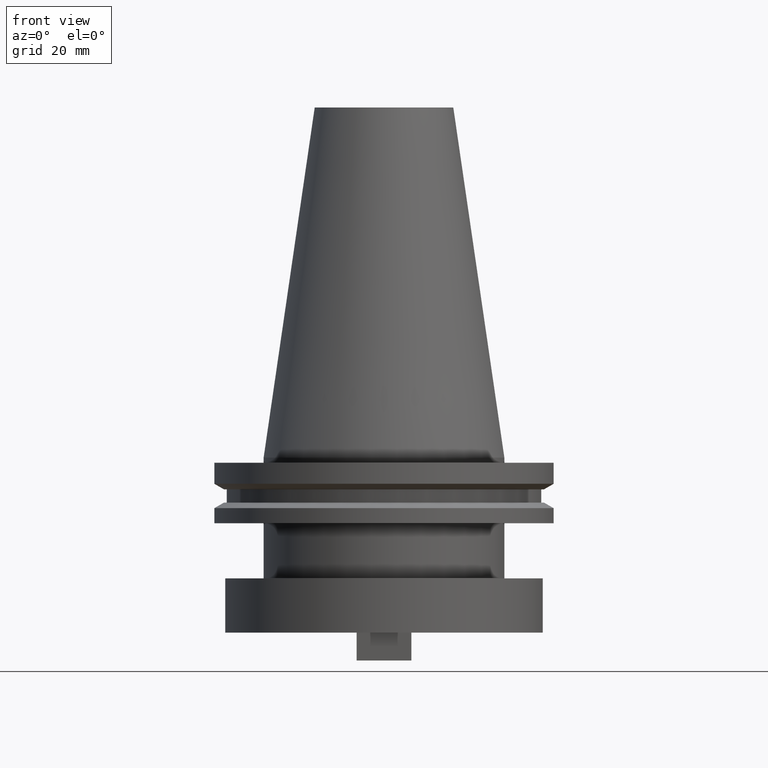
[diagram: clean part render]
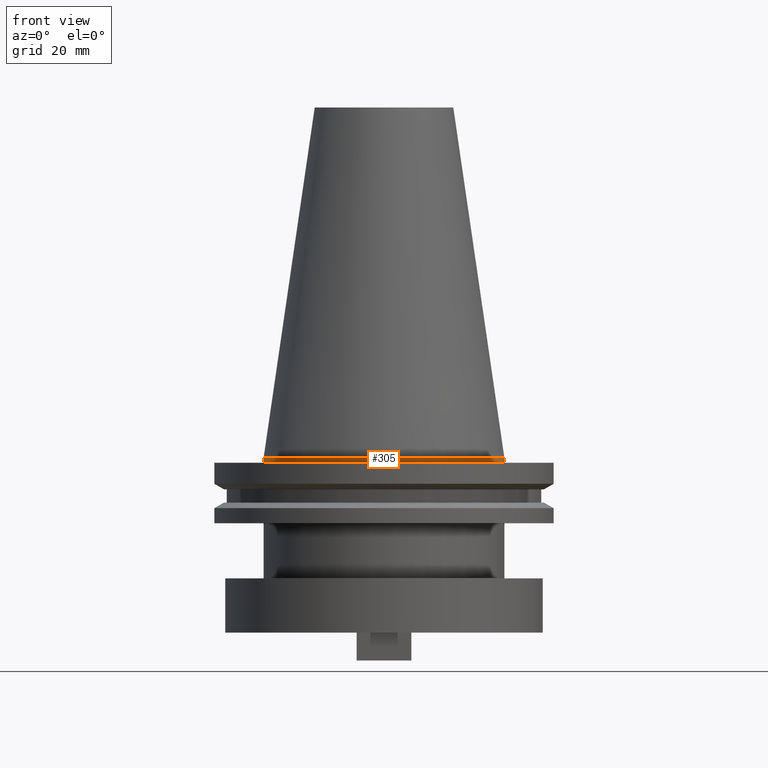
[diagram: same view with one face highlighted and labeled with its STEP entity id]
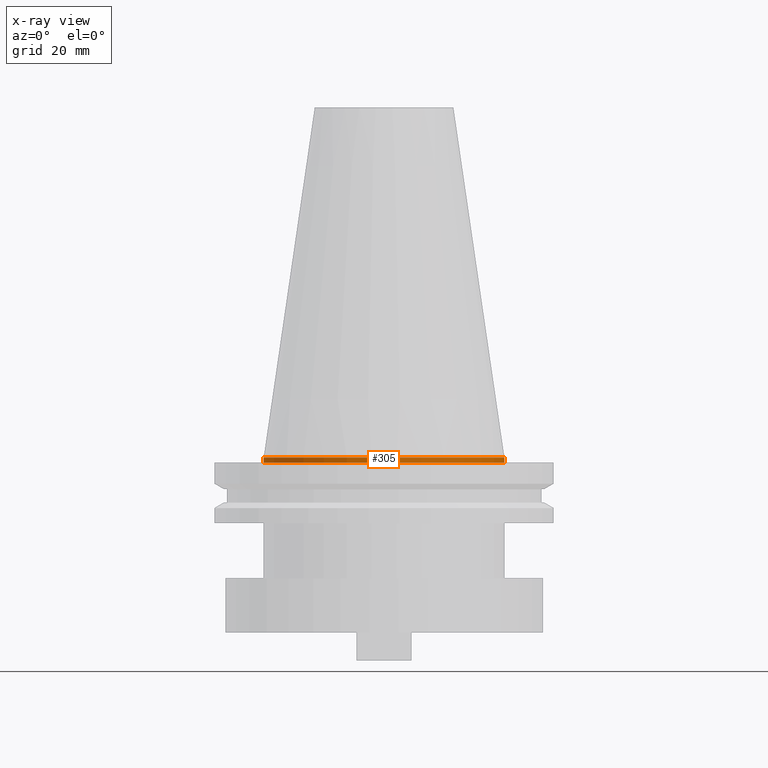
[diagram: x-ray of the same camera — body ghosted, the highlighted face saturated]
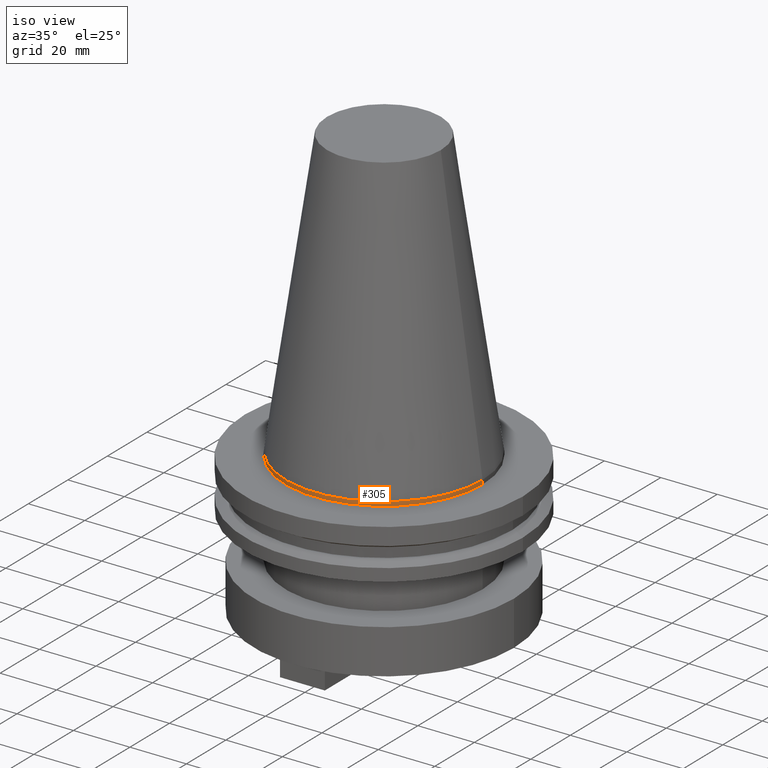
[diagram: same view with one face highlighted and labeled with its STEP entity id]
A machine part, front view. The second image highlights one B-rep face of the part: STEP entity #305.
The next image is the same camera in x-ray: the body ghosted, the highlighted face saturated — about 0% of this face is hidden behind the body in this view.
A second angle (iso view) of the same face is appended — the face is thin or edge-on in the first view.
In plain terms, the highlighted cylindrical surface (partial cylindrical patch) has radius 34.925 mm, axis along (-0, -0, 1).
Its self-contained STEP definition (entity closure, byte-faithful):
#11 = ORIENTED_EDGE ( 'NONE', *, *, #1067, .T. ) ;
#40 = LINE ( 'NONE', #710, #262 ) ;
#120 = VERTEX_POINT ( 'NONE', #859 ) ;
#140 = CARTESIAN_POINT ( 'NONE',  ( 0.000000000000000000, 0.000000000000000000, 101.5999999999999943 ) ) ;
#197 = VERTEX_POINT ( 'NONE', #971 ) ;
#262 = VECTOR ( 'NONE', #616, 1000.000000000000000 ) ;
#265 = VERTEX_POINT ( 'NONE', #537 ) ;
#296 = CYLINDRICAL_SURFACE ( 'NONE', #1019, 34.92499999999999005 ) ;
#305 = ADVANCED_FACE ( 'NONE', ( #1064 ), #296, .T. ) ;
#308 = DIRECTION ( 'NONE',  ( -0.000000000000000000, -0.000000000000000000, 1.000000000000000000 ) ) ;
#361 = EDGE_CURVE ( 'NONE', #799, #197, #704, .T. ) ;
#398 = DIRECTION ( 'NONE',  ( 1.000000000000000000, 0.000000000000000000, 0.000000000000000000 ) ) ;
#402 = VECTOR ( 'NONE', #618, 1000.000000000000000 ) ;
#411 = DIRECTION ( 'NONE',  ( -0.000000000000000000, -0.000000000000000000, 1.000000000000000000 ) ) ;
#537 = CARTESIAN_POINT ( 'NONE',  ( -34.92499999999999005, 0.000000000000000000, 0.000000000000000000 ) ) ;
#540 = ORIENTED_EDGE ( 'NONE', *, *, #780, .F. ) ;
#579 = LINE ( 'NONE', #851, #402 ) ;
#609 = ORIENTED_EDGE ( 'NONE', *, *, #361, .T. ) ;
#616 = DIRECTION ( 'NONE',  ( -0.000000000000000000, -0.000000000000000000, 1.000000000000000000 ) ) ;
#618 = DIRECTION ( 'NONE',  ( -0.000000000000000000, -0.000000000000000000, 1.000000000000000000 ) ) ;
#663 = CARTESIAN_POINT ( 'NONE',  ( 0.000000000000000000, 0.000000000000000000, -1.499999999999987566 ) ) ;
#694 = EDGE_LOOP ( 'NONE', ( #760, #609, #11, #540 ) ) ;
#704 = CIRCLE ( 'NONE', #758, 34.92499999999999005 ) ;
#710 = CARTESIAN_POINT ( 'NONE',  ( 34.92499999999999005, 0.000000000000000000, 101.5999999999999943 ) ) ;
#713 = EDGE_CURVE ( 'NONE', #799, #265, #579, .T. ) ;
#758 = AXIS2_PLACEMENT_3D ( 'NONE', #663, #411, #996 ) ;
#760 = ORIENTED_EDGE ( 'NONE', *, *, #713, .F. ) ;
#780 = EDGE_CURVE ( 'NONE', #265, #120, #979, .T. ) ;
#799 = VERTEX_POINT ( 'NONE', #1062 ) ;
#851 = CARTESIAN_POINT ( 'NONE',  ( -34.92499999999999005, 4.277078946022130098E-15, 101.5999999999999943 ) ) ;
#859 = CARTESIAN_POINT ( 'NONE',  ( 34.92499999999999005, 4.277078946022130098E-15, 0.000000000000000000 ) ) ;
#891 = DIRECTION ( 'NONE',  ( -0.000000000000000000, -0.000000000000000000, 1.000000000000000000 ) ) ;
#901 = DIRECTION ( 'NONE',  ( 1.000000000000000000, 0.000000000000000000, 0.000000000000000000 ) ) ;
#971 = CARTESIAN_POINT ( 'NONE',  ( 34.92499999999999005, 0.000000000000000000, -1.499999999999987566 ) ) ;
#979 = CIRCLE ( 'NONE', #1021, 34.92499999999999005 ) ;
#996 = DIRECTION ( 'NONE',  ( 1.000000000000000000, 0.000000000000000000, 0.000000000000000000 ) ) ;
#1019 = AXIS2_PLACEMENT_3D ( 'NONE', #140, #308, #901 ) ;
#1021 = AXIS2_PLACEMENT_3D ( 'NONE', #1049, #891, #398 ) ;
#1049 = CARTESIAN_POINT ( 'NONE',  ( 0.000000000000000000, 0.000000000000000000, 0.000000000000000000 ) ) ;
#1062 = CARTESIAN_POINT ( 'NONE',  ( -34.92499999999999005, 4.277078946022130098E-15, -1.499999999999987566 ) ) ;
#1064 = FACE_OUTER_BOUND ( 'NONE', #694, .T. ) ;
#1067 = EDGE_CURVE ( 'NONE', #197, #120, #40, .T. ) ;